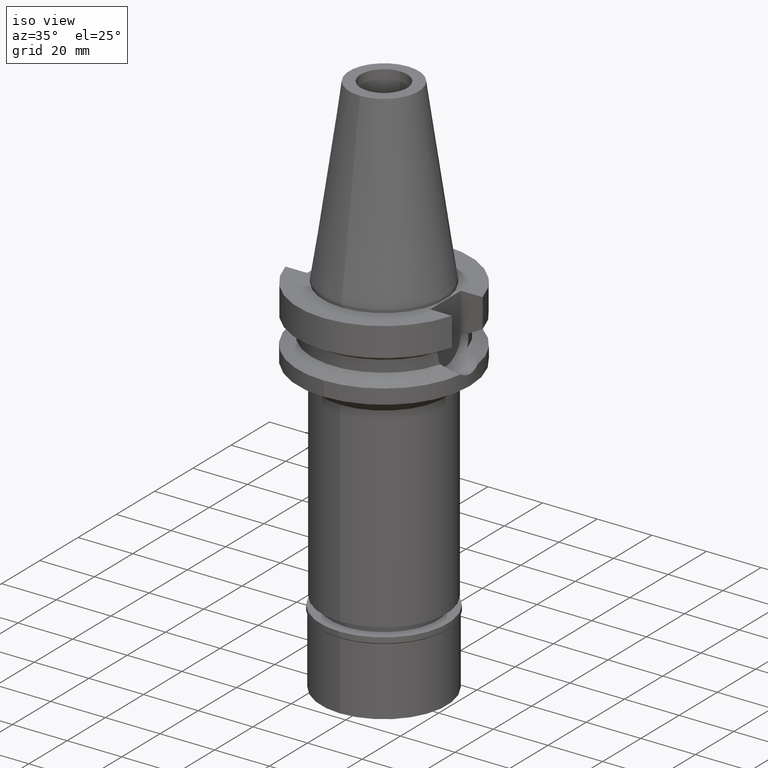
[diagram: clean part render]
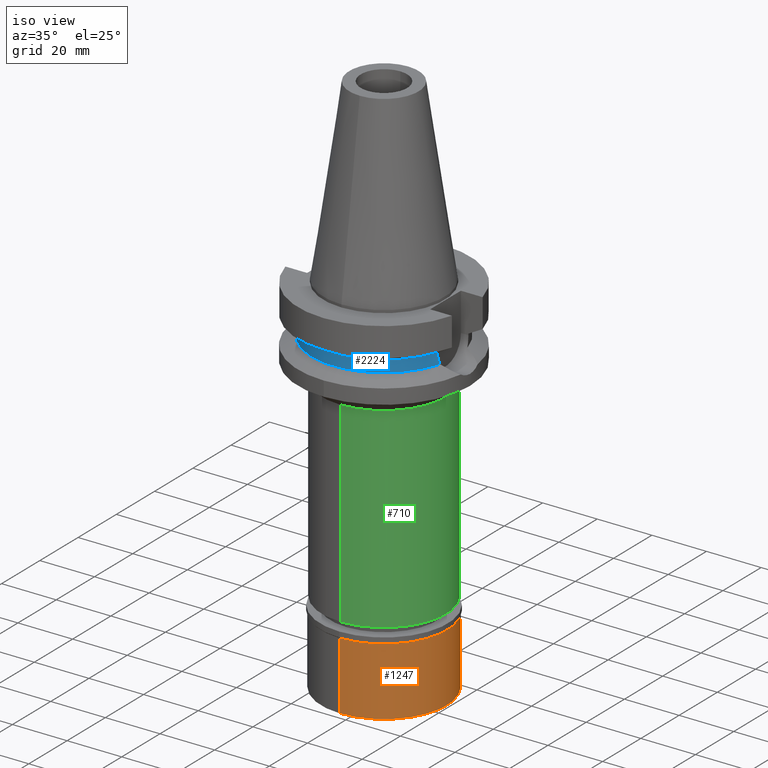
[diagram: same view with three faces highlighted in distinct colors, each labeled with its STEP entity id]
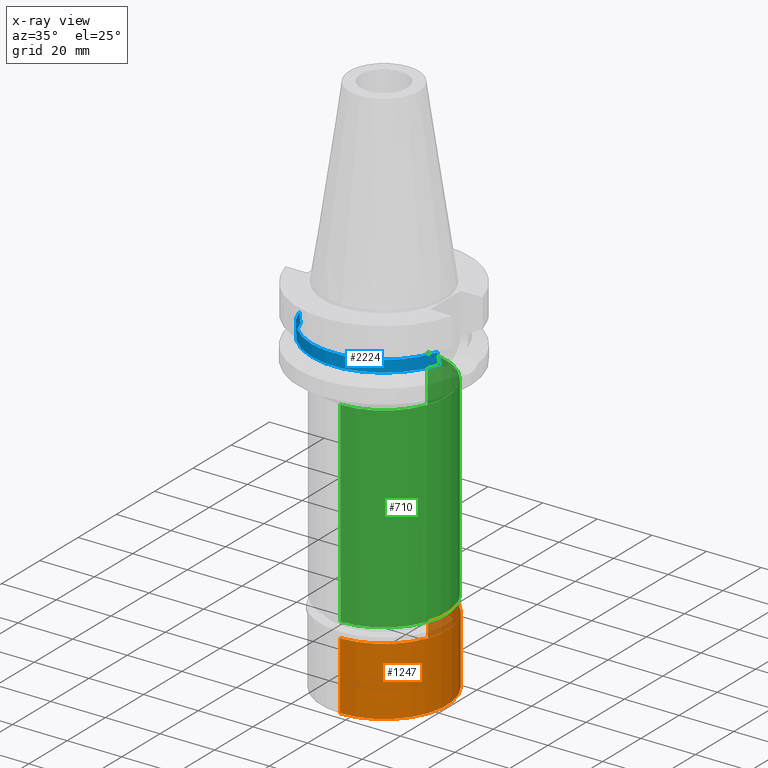
[diagram: x-ray of the same camera — body ghosted, the three highlighted faces saturated]
A machine part, iso view with three faces highlighted in distinct colors.
The next image is the same camera in x-ray (body ghosted, the three faces saturated) — at least one of them is partly hidden behind the body in this view.
Their STEP definitions:

[orange] entity #1247 — the highlighted cylindrical surface (partial cylindrical patch) has radius 23 mm, axis along (0, 0, -1).
#5 = VECTOR ( 'NONE', #985, 1000.000000000000000 ) ;
#40 = VERTEX_POINT ( 'NONE', #210 ) ;
#179 = EDGE_CURVE ( 'NONE', #40, #1548, #1182, .T. ) ;
#210 = CARTESIAN_POINT ( 'NONE',  ( 0.0000000000000000000, -23.00000000000000000, -2.299999999999999822 ) ) ;
#290 = CARTESIAN_POINT ( 'NONE',  ( 0.0000000000000000000, 0.0000000000000000000, 0.0000000000000000000 ) ) ;
#343 = DIRECTION ( 'NONE',  ( 0.0000000000000000000, -1.000000000000000000, 0.0000000000000000000 ) ) ;
#403 = ORIENTED_EDGE ( 'NONE', *, *, #1689, .T. ) ;
#502 = CARTESIAN_POINT ( 'NONE',  ( 0.0000000000000000000, 23.00000000000000000, -2.299999999999999822 ) ) ;
#608 = ORIENTED_EDGE ( 'NONE', *, *, #2190, .T. ) ;
#617 = VERTEX_POINT ( 'NONE', #1392 ) ;
#679 = CARTESIAN_POINT ( 'NONE',  ( 0.0000000000000000000, -23.00000000000000000, -27.19999999999999929 ) ) ;
#705 = DIRECTION ( 'NONE',  ( 0.0000000000000000000, -1.000000000000000000, 0.0000000000000000000 ) ) ;
#785 = DIRECTION ( 'NONE',  ( 0.0000000000000000000, 0.0000000000000000000, -1.000000000000000000 ) ) ;
#951 = CARTESIAN_POINT ( 'NONE',  ( 0.0000000000000000000, -23.00000000000000000, -2.299999999999999822 ) ) ;
#985 = DIRECTION ( 'NONE',  ( 0.0000000000000000000, 0.0000000000000000000, -1.000000000000000000 ) ) ;
#1019 = CYLINDRICAL_SURFACE ( 'NONE', #2255, 23.00000000000000000 ) ;
#1182 = LINE ( 'NONE', #951, #5 ) ;
#1191 = VECTOR ( 'NONE', #2358, 1000.000000000000000 ) ;
#1203 = CIRCLE ( 'NONE', #1594, 23.00000000000000000 ) ;
#1233 = LINE ( 'NONE', #2182, #1191 ) ;
#1247 = ADVANCED_FACE ( 'NONE', ( #1465 ), #1019, .T. ) ;
#1392 = CARTESIAN_POINT ( 'NONE',  ( 0.0000000000000000000, 23.00000000000000000, -27.19999999999999929 ) ) ;
#1465 = FACE_OUTER_BOUND ( 'NONE', #2519, .T. ) ;
#1548 = VERTEX_POINT ( 'NONE', #679 ) ;
#1594 = AXIS2_PLACEMENT_3D ( 'NONE', #1931, #2156, #705 ) ;
#1689 = EDGE_CURVE ( 'NONE', #3098, #40, #1855, .T. ) ;
#1806 = AXIS2_PLACEMENT_3D ( 'NONE', #2515, #2469, #2743 ) ;
#1855 = CIRCLE ( 'NONE', #1806, 23.00000000000000000 ) ;
#1931 = CARTESIAN_POINT ( 'NONE',  ( 0.0000000000000000000, 0.0000000000000000000, -27.19999999999999929 ) ) ;
#2156 = DIRECTION ( 'NONE',  ( 0.0000000000000000000, 0.0000000000000000000, 1.000000000000000000 ) ) ;
#2182 = CARTESIAN_POINT ( 'NONE',  ( 0.0000000000000000000, 23.00000000000000000, -2.299999999999999822 ) ) ;
#2190 = EDGE_CURVE ( 'NONE', #1548, #617, #1203, .T. ) ;
#2255 = AXIS2_PLACEMENT_3D ( 'NONE', #290, #785, #343 ) ;
#2331 = EDGE_CURVE ( 'NONE', #3098, #617, #1233, .T. ) ;
#2358 = DIRECTION ( 'NONE',  ( 0.0000000000000000000, 0.0000000000000000000, -1.000000000000000000 ) ) ;
#2422 = ORIENTED_EDGE ( 'NONE', *, *, #2331, .F. ) ;
#2469 = DIRECTION ( 'NONE',  ( 0.0000000000000000000, 0.0000000000000000000, -1.000000000000000000 ) ) ;
#2515 = CARTESIAN_POINT ( 'NONE',  ( 0.0000000000000000000, 0.0000000000000000000, -2.299999999999999822 ) ) ;
#2519 = EDGE_LOOP ( 'NONE', ( #403, #3028, #608, #2422 ) ) ;
#2743 = DIRECTION ( 'NONE',  ( 0.0000000000000000000, 1.000000000000000000, 0.0000000000000000000 ) ) ;
#3028 = ORIENTED_EDGE ( 'NONE', *, *, #179, .T. ) ;
#3098 = VERTEX_POINT ( 'NONE', #502 ) ;

[blue] entity #2224 — the highlighted cylindrical surface (partial cylindrical patch) has radius 26.5 mm, axis along (0, 0, -1).
#46 = CARTESIAN_POINT ( 'NONE',  ( 25.24772266958000344, -8.050000000000000711, -14.94999999999999929 ) ) ;
#52 = FACE_OUTER_BOUND ( 'NONE', #556, .T. ) ;
#67 = CARTESIAN_POINT ( 'NONE',  ( 25.24772266958000344, -8.050000000000000711, -14.45225699861000024 ) ) ;
#107 = CARTESIAN_POINT ( 'NONE',  ( 25.31651430600430430, -7.831206233909829173, -16.81417435993497023 ) ) ;
#111 = VERTEX_POINT ( 'NONE', #2103 ) ;
#114 = CARTESIAN_POINT ( 'NONE',  ( -25.24772266958000344, -8.050000000000000711, -14.94999999999999929 ) ) ;
#190 = CARTESIAN_POINT ( 'NONE',  ( -25.39161415870588456, -7.584927955021788293, -17.65164487468281251 ) ) ;
#226 = CARTESIAN_POINT ( 'NONE',  ( -25.24772413120999914, -8.049995415794001019, -14.45229202793000134 ) ) ;
#239 = LINE ( 'NONE', #2631, #3019 ) ;
#256 = DIRECTION ( 'NONE',  ( 0.0000000000000000000, 0.0000000000000000000, -1.000000000000000000 ) ) ;
#273 = EDGE_CURVE ( 'NONE', #3040, #775, #239, .T. ) ;
#306 = CARTESIAN_POINT ( 'NONE',  ( 25.30215121708054227, -7.877593292754585086, -16.61077438410653784 ) ) ;
#337 = CARTESIAN_POINT ( 'NONE',  ( -25.24772266958000699, -8.050000000000000711, -15.58980474858213938 ) ) ;
#347 = CARTESIAN_POINT ( 'NONE',  ( 25.24772266958000344, -8.050000000000000711, -14.94999999999999929 ) ) ;
#419 = VECTOR ( 'NONE', #1720, 1000.000000000000114 ) ;
#436 = DIRECTION ( 'NONE',  ( 0.0000000000000000000, 0.0000000000000000000, 1.000000000000000000 ) ) ;
#556 = EDGE_LOOP ( 'NONE', ( #1273, #2360, #2262, #2513, #2577, #2159 ) ) ;
#580 = CARTESIAN_POINT ( 'NONE',  ( -25.32546393109958061, -7.802212764474003137, -16.93200521438838990 ) ) ;
#585 = CARTESIAN_POINT ( 'NONE',  ( 25.31205175036245336, -7.845641664298890205, -16.75318037307338770 ) ) ;
#639 = DIRECTION ( 'NONE',  ( 0.0000000000000000000, 0.0000000000000000000, -1.000000000000000000 ) ) ;
#775 = VERTEX_POINT ( 'NONE', #46 ) ;
#795 = CARTESIAN_POINT ( 'NONE',  ( -25.33288764354210443, -7.778115188336424346, -17.02509724684081860 ) ) ;
#821 = CARTESIAN_POINT ( 'NONE',  ( 25.53175183775000079, -7.097862220092999941, -18.74774300138999905 ) ) ;
#825 = CARTESIAN_POINT ( 'NONE',  ( -25.53175183775000079, -7.097862220092999941, -18.74774300138999905 ) ) ;
#919 = CARTESIAN_POINT ( 'NONE',  ( -25.53175183775000079, -7.097862220092999941, -18.74774300138999905 ) ) ;
#1023 = VERTEX_POINT ( 'NONE', #226 ) ;
#1052 = CARTESIAN_POINT ( 'NONE',  ( 25.36817666880170563, -7.663730637058529638, -17.48830498329490979 ) ) ;
#1125 = DIRECTION ( 'NONE',  ( 0.9527442516822307583, -0.3037735849057093818, 0.0000000000000000000 ) ) ;
#1273 = ORIENTED_EDGE ( 'NONE', *, *, #1609, .F. ) ;
#1324 = CARTESIAN_POINT ( 'NONE',  ( 25.31953811419878164, -7.821417378317978120, -16.85482737181421342 ) ) ;
#1375 = B_SPLINE_CURVE_WITH_KNOTS ( 'NONE', 3,
 ( #919, #1403, #2348, #190, #2111, #3099, #2077, #795, #2484, #580, #2999, #2754, #337, #114 ),
 .UNSPECIFIED., .F., .F.,
 ( 4, 2, 2, 1, 1, 2, 2, 4 ),
 ( 0.0000000000000000000, 0.2499999999999951150, 0.3749999999999914513, 0.4374999999999895084, 0.4687499999999885647, 0.4843749999999894529, 0.4999999999999903411, 1.000000000000000000 ),
 .UNSPECIFIED. ) ;
#1403 = CARTESIAN_POINT ( 'NONE',  ( -25.48480632956524516, -7.266730116910204984, -18.43213421359635618 ) ) ;
#1437 = DIRECTION ( 'NONE',  ( 0.0000000000000000000, -1.000000000000000000, 0.0000000000000000000 ) ) ;
#1526 = CARTESIAN_POINT ( 'NONE',  ( 25.32121190436317448, -7.815994543146043583, -16.87693897482722960 ) ) ;
#1609 = EDGE_CURVE ( 'NONE', #1682, #2637, #1375, .T. ) ;
#1616 = DIRECTION ( 'NONE',  ( 0.0000000000000000000, -1.000000000000000000, 0.0000000000000000000 ) ) ;
#1628 = LINE ( 'NONE', #2605, #419 ) ;
#1682 = VERTEX_POINT ( 'NONE', #825 ) ;
#1716 = CARTESIAN_POINT ( 'NONE',  ( 25.25396537036859712, -8.030898972450222217, -15.59374611992973492 ) ) ;
#1720 = DIRECTION ( 'NONE',  ( -2.936722796047909751E-06, 9.210634716699719199E-06, 0.9999999999532699357 ) ) ;
#1800 = EDGE_CURVE ( 'NONE', #1682, #111, #2724, .T. ) ;
#1842 = CIRCLE ( 'NONE', #3020, 26.50000000000000711 ) ;
#1883 = B_SPLINE_CURVE_WITH_KNOTS ( 'NONE', 3,
 ( #347, #3006, #1716, #2233, #2736, #2433, #306, #585, #107, #1324, #1526, #1052, #2979, #821 ),
 .UNSPECIFIED., .F., .F.,
 ( 4, 2, 2, 1, 1, 2, 2, 4 ),
 ( 0.0000000000000000000, 0.2500000000000069389, 0.3750000000000104361, 0.4375000000000135447, 0.4687500000000150990, 0.4843750000000147105, 0.5000000000000143219, 1.000000000000000000 ),
 .UNSPECIFIED. ) ;
#2072 = CARTESIAN_POINT ( 'NONE',  ( -25.24772266958000344, -8.050000000000000711, -14.94999999999999929 ) ) ;
#2077 = CARTESIAN_POINT ( 'NONE',  ( -25.34384264181177926, -7.742472632649030295, -17.15618260535354977 ) ) ;
#2101 = EDGE_CURVE ( 'NONE', #2637, #1023, #1628, .T. ) ;
#2103 = CARTESIAN_POINT ( 'NONE',  ( 25.53175183775000079, -7.097862220092999941, -18.74774300138999905 ) ) ;
#2111 = CARTESIAN_POINT ( 'NONE',  ( -25.37569502948930733, -7.637838761477345528, -17.49780446183530813 ) ) ;
#2159 = ORIENTED_EDGE ( 'NONE', *, *, #2101, .F. ) ;
#2224 = ADVANCED_FACE ( 'NONE', ( #52 ), #2646, .T. ) ;
#2233 = CARTESIAN_POINT ( 'NONE',  ( 25.27269347273437461, -7.971777372259774452, -16.08140504253947611 ) ) ;
#2262 = ORIENTED_EDGE ( 'NONE', *, *, #2457, .F. ) ;
#2284 = CARTESIAN_POINT ( 'NONE',  ( 0.0000000000000000000, 0.0000000000000000000, -18.74774300138999905 ) ) ;
#2348 = CARTESIAN_POINT ( 'NONE',  ( -25.44390372128112077, -7.408325733453222206, -18.11690357828249986 ) ) ;
#2360 = ORIENTED_EDGE ( 'NONE', *, *, #1800, .T. ) ;
#2388 = AXIS2_PLACEMENT_3D ( 'NONE', #2618, #256, #1437 ) ;
#2433 = CARTESIAN_POINT ( 'NONE',  ( 25.29454292549445782, -7.902026734854635137, -16.48861329468615011 ) ) ;
#2457 = EDGE_CURVE ( 'NONE', #775, #111, #1883, .T. ) ;
#2484 = CARTESIAN_POINT ( 'NONE',  ( -25.32840508998330620, -7.792668837054353759, -16.96920308240299136 ) ) ;
#2513 = ORIENTED_EDGE ( 'NONE', *, *, #273, .F. ) ;
#2577 = ORIENTED_EDGE ( 'NONE', *, *, #2632, .T. ) ;
#2605 = CARTESIAN_POINT ( 'NONE',  ( -25.24772266958000344, -8.050000000000000711, -14.94999999999999929 ) ) ;
#2618 = CARTESIAN_POINT ( 'NONE',  ( 0.0000000000000000000, 0.0000000000000000000, 0.0000000000000000000 ) ) ;
#2631 = CARTESIAN_POINT ( 'NONE',  ( 25.24772216363000155, -8.050001586837000289, -14.45224487378000156 ) ) ;
#2632 = EDGE_CURVE ( 'NONE', #3040, #1023, #1842, .T. ) ;
#2637 = VERTEX_POINT ( 'NONE', #2072 ) ;
#2646 = CYLINDRICAL_SURFACE ( 'NONE', #2388, 26.50000000000000000 ) ;
#2668 = AXIS2_PLACEMENT_3D ( 'NONE', #2284, #436, #1616 ) ;
#2724 = CIRCLE ( 'NONE', #2668, 26.50000000000000000 ) ;
#2736 = CARTESIAN_POINT ( 'NONE',  ( 25.28049684872012293, -7.946995976261309380, -16.24428919065877608 ) ) ;
#2754 = CARTESIAN_POINT ( 'NONE',  ( -25.27267964220303043, -7.973335155931463802, -16.24499043154098388 ) ) ;
#2795 = CARTESIAN_POINT ( 'NONE',  ( 0.0000000000000000000, 0.0000000000000000000, -14.45225699861000024 ) ) ;
#2928 = DIRECTION ( 'NONE',  ( 1.016459450809001804E-06, 3.187987735341003491E-06, -0.9999999999944017004 ) ) ;
#2979 = CARTESIAN_POINT ( 'NONE',  ( 25.43788225503733003, -7.435520914581282170, -18.11666952168581446 ) ) ;
#2999 = CARTESIAN_POINT ( 'NONE',  ( -25.32415339823800338, -7.806463147621001575, -16.91521530248343197 ) ) ;
#3006 = CARTESIAN_POINT ( 'NONE',  ( 25.24772266958000699, -8.049999999999998934, -15.26998451552480596 ) ) ;
#3019 = VECTOR ( 'NONE', #2928, 1000.000000000000114 ) ;
#3020 = AXIS2_PLACEMENT_3D ( 'NONE', #2795, #639, #1125 ) ;
#3040 = VERTEX_POINT ( 'NONE', #67 ) ;
#3099 = CARTESIAN_POINT ( 'NONE',  ( -25.35408242312715998, -7.708967322931910893, -17.26962711324177135 ) ) ;

[green] entity #710 — the highlighted cylindrical surface (partial cylindrical patch) has radius 22.75 mm, axis along (0, 0, -1).
#101 = ORIENTED_EDGE ( 'NONE', *, *, #1305, .T. ) ;
#236 = CARTESIAN_POINT ( 'NONE',  ( 0.0000000000000000000, 22.75000000000000000, -33.00000000000000000 ) ) ;
#389 = DIRECTION ( 'NONE',  ( 0.0000000000000000000, 1.000000000000000000, 0.0000000000000000000 ) ) ;
#416 = EDGE_CURVE ( 'NONE', #2691, #2960, #2443, .T. ) ;
#511 = AXIS2_PLACEMENT_3D ( 'NONE', #2567, #650, #2924 ) ;
#535 = CARTESIAN_POINT ( 'NONE',  ( 0.0000000000000000000, -22.75000000000000000, -104.8000000000000114 ) ) ;
#591 = DIRECTION ( 'NONE',  ( 0.0000000000000000000, 0.0000000000000000000, 1.000000000000000000 ) ) ;
#630 = DIRECTION ( 'NONE',  ( 0.0000000000000000000, 0.0000000000000000000, -1.000000000000000000 ) ) ;
#650 = DIRECTION ( 'NONE',  ( 0.0000000000000000000, 0.0000000000000000000, -1.000000000000000000 ) ) ;
#667 = VERTEX_POINT ( 'NONE', #2290 ) ;
#710 = ADVANCED_FACE ( 'NONE', ( #2804 ), #1379, .T. ) ;
#827 = DIRECTION ( 'NONE',  ( 0.0000000000000000000, -1.000000000000000000, 0.0000000000000000000 ) ) ;
#886 = VERTEX_POINT ( 'NONE', #535 ) ;
#1082 = LINE ( 'NONE', #2532, #2769 ) ;
#1084 = DIRECTION ( 'NONE',  ( 0.0000000000000000000, 0.0000000000000000000, -1.000000000000000000 ) ) ;
#1095 = CARTESIAN_POINT ( 'NONE',  ( 0.0000000000000000000, 0.0000000000000000000, -33.00000000000000000 ) ) ;
#1102 = AXIS2_PLACEMENT_3D ( 'NONE', #1095, #1084, #389 ) ;
#1146 = ORIENTED_EDGE ( 'NONE', *, *, #2932, .F. ) ;
#1293 = EDGE_CURVE ( 'NONE', #886, #667, #1953, .T. ) ;
#1305 = EDGE_CURVE ( 'NONE', #2960, #886, #1082, .T. ) ;
#1306 = VECTOR ( 'NONE', #630, 1000.000000000000000 ) ;
#1310 = ORIENTED_EDGE ( 'NONE', *, *, #1293, .T. ) ;
#1379 = CYLINDRICAL_SURFACE ( 'NONE', #511, 22.75000000000000000 ) ;
#1725 = ORIENTED_EDGE ( 'NONE', *, *, #416, .T. ) ;
#1953 = CIRCLE ( 'NONE', #2152, 22.75000000000000000 ) ;
#2110 = EDGE_LOOP ( 'NONE', ( #1725, #101, #1310, #1146 ) ) ;
#2152 = AXIS2_PLACEMENT_3D ( 'NONE', #2543, #591, #827 ) ;
#2263 = DIRECTION ( 'NONE',  ( 0.0000000000000000000, 0.0000000000000000000, -1.000000000000000000 ) ) ;
#2290 = CARTESIAN_POINT ( 'NONE',  ( 0.0000000000000000000, 22.75000000000000000, -104.8000000000000114 ) ) ;
#2354 = CARTESIAN_POINT ( 'NONE',  ( 0.0000000000000000000, -22.75000000000000000, -33.00000000000000000 ) ) ;
#2443 = CIRCLE ( 'NONE', #1102, 22.75000000000000000 ) ;
#2527 = LINE ( 'NONE', #3030, #1306 ) ;
#2532 = CARTESIAN_POINT ( 'NONE',  ( 0.0000000000000000000, -22.75000000000000000, -33.00000000000000000 ) ) ;
#2543 = CARTESIAN_POINT ( 'NONE',  ( 0.0000000000000000000, 0.0000000000000000000, -104.8000000000000114 ) ) ;
#2567 = CARTESIAN_POINT ( 'NONE',  ( 0.0000000000000000000, 0.0000000000000000000, 0.0000000000000000000 ) ) ;
#2691 = VERTEX_POINT ( 'NONE', #236 ) ;
#2769 = VECTOR ( 'NONE', #2263, 1000.000000000000000 ) ;
#2804 = FACE_OUTER_BOUND ( 'NONE', #2110, .T. ) ;
#2924 = DIRECTION ( 'NONE',  ( 0.0000000000000000000, -1.000000000000000000, 0.0000000000000000000 ) ) ;
#2932 = EDGE_CURVE ( 'NONE', #2691, #667, #2527, .T. ) ;
#2960 = VERTEX_POINT ( 'NONE', #2354 ) ;
#3030 = CARTESIAN_POINT ( 'NONE',  ( 0.0000000000000000000, 22.75000000000000000, -33.00000000000000000 ) ) ;